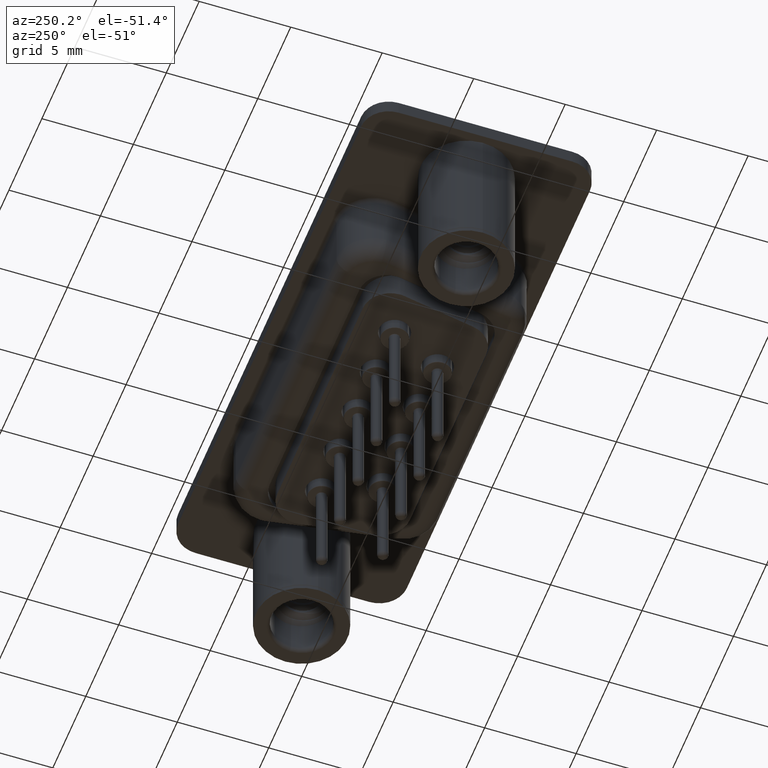
[diagram: clean part render]
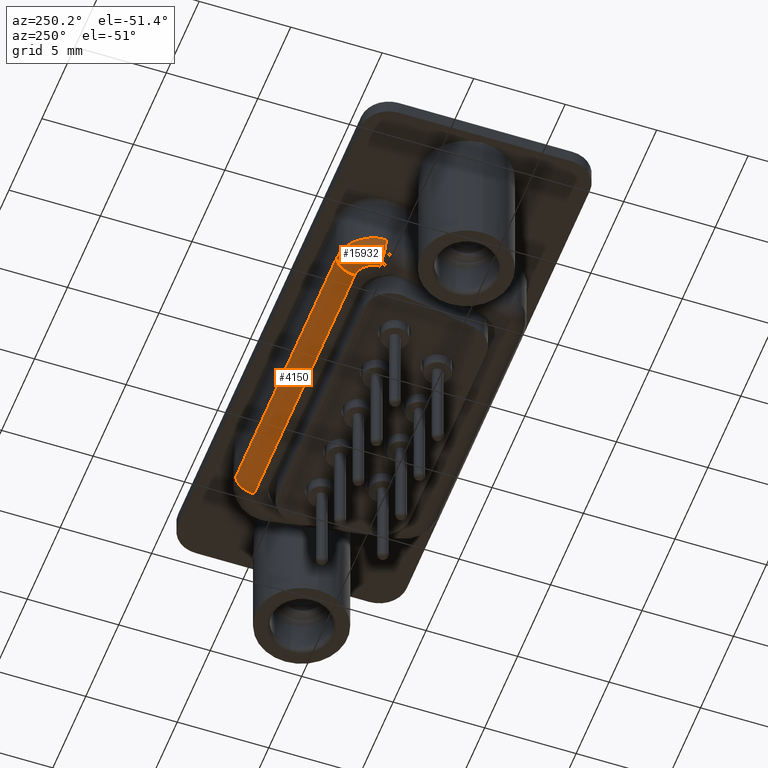
[diagram: same view with one multi-face feature highlighted, each face labeled with its STEP entity id]
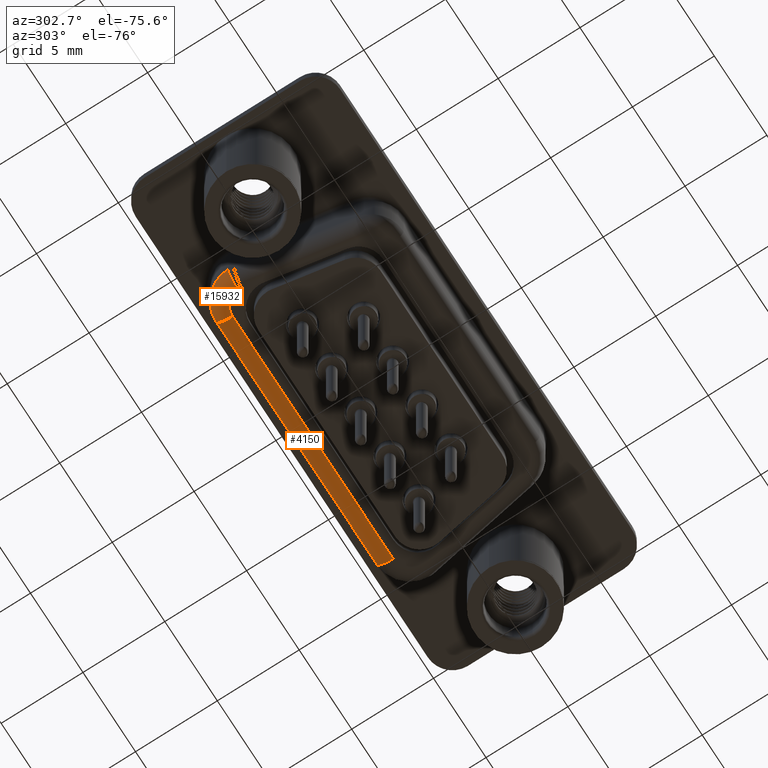
[diagram: same view with one multi-face feature highlighted, each face labeled with its STEP entity id]
A machine part, auxiliary view. The highlighted faces form ONE feature: a constant-radius fillet chain: 2 tangent blend faces with common blend radius 1 mm. The faces share edges in the B-rep.
A second angle (auxiliary view) of the same feature is appended — it is thin or edge-on in the first view.
Their STEP definitions:
[1] entity #15932 (Torus):
#144 = AXIS2_PLACEMENT_3D ( 'NONE', #14651, #2224, #12210 ) ;
#620 = CIRCLE ( 'NONE', #6352, 0.9999999999999991118 ) ;
#633 = VERTEX_POINT ( 'NONE', #2440 ) ;
#1289 = VERTEX_POINT ( 'NONE', #13294 ) ;
#1298 = DIRECTION ( 'NONE',  ( 1.224646799147353207E-16, 1.000000000000000000, 0.0000000000000000000 ) ) ;
#1362 = AXIS2_PLACEMENT_3D ( 'NONE', #11997, #9535, #14515 ) ;
#1390 = ORIENTED_EDGE ( 'NONE', *, *, #10282, .F. ) ;
#2224 = DIRECTION ( 'NONE',  ( 0.0000000000000000000, -0.0000000000000000000, 1.000000000000000000 ) ) ;
#2440 = CARTESIAN_POINT ( 'NONE',  ( 4.850000000000006750, 4.350000000000005862, -4.500000000000000000 ) ) ;
#2472 = VERTEX_POINT ( 'NONE', #15208 ) ;
#2547 = FACE_OUTER_BOUND ( 'NONE', #3634, .T. ) ;
#2599 = CARTESIAN_POINT ( 'NONE',  ( 3.850000000000007638, 3.350000000000005862, -3.499999999999999556 ) ) ;
#2987 = DIRECTION ( 'NONE',  ( 1.000000000000000000, 0.0000000000000000000, 0.0000000000000000000 ) ) ;
#3393 = CIRCLE ( 'NONE', #11776, 1.000000000000000000 ) ;
#3634 = EDGE_LOOP ( 'NONE', ( #1390, #3841, #10241, #14296 ) ) ;
#3841 = ORIENTED_EDGE ( 'NONE', *, *, #4684, .T. ) ;
#4684 = EDGE_CURVE ( 'NONE', #12114, #2472, #14856, .T. ) ;
#4933 = DIRECTION ( 'NONE',  ( 0.0000000000000000000, 0.0000000000000000000, 1.000000000000000000 ) ) ;
#5365 = TOROIDAL_SURFACE ( 'NONE', #144, 0.9999999999999995559, 1.000000000000000000 ) ;
#6352 = AXIS2_PLACEMENT_3D ( 'NONE', #6586, #6827, #2987 ) ;
#6586 = CARTESIAN_POINT ( 'NONE',  ( 4.850000000000006750, 3.350000000000005862, -4.500000000000000000 ) ) ;
#6827 = DIRECTION ( 'NONE',  ( -0.0000000000000000000, 0.0000000000000000000, -1.000000000000000000 ) ) ;
#7216 = DIRECTION ( 'NONE',  ( -1.000000000000000000, 0.0000000000000000000, 0.0000000000000000000 ) ) ;
#7735 = EDGE_CURVE ( 'NONE', #1289, #633, #3393, .T. ) ;
#9204 = EDGE_CURVE ( 'NONE', #1289, #2472, #10530, .T. ) ;
#9535 = DIRECTION ( 'NONE',  ( 0.0000000000000000000, -0.0000000000000000000, 1.000000000000000000 ) ) ;
#10241 = ORIENTED_EDGE ( 'NONE', *, *, #9204, .F. ) ;
#10282 = EDGE_CURVE ( 'NONE', #12114, #633, #620, .T. ) ;
#10530 = CIRCLE ( 'NONE', #1362, 2.000000000000000000 ) ;
#11490 = AXIS2_PLACEMENT_3D ( 'NONE', #2599, #1298, #14858 ) ;
#11776 = AXIS2_PLACEMENT_3D ( 'NONE', #14820, #7216, #4933 ) ;
#11997 = CARTESIAN_POINT ( 'NONE',  ( 4.850000000000006750, 3.350000000000005862, -3.499999999999999556 ) ) ;
#12114 = VERTEX_POINT ( 'NONE', #12809 ) ;
#12210 = DIRECTION ( 'NONE',  ( 1.000000000000000000, 0.0000000000000000000, 0.0000000000000000000 ) ) ;
#12809 = CARTESIAN_POINT ( 'NONE',  ( 3.850000000000007638, 3.350000000000005862, -4.500000000000000000 ) ) ;
#13294 = CARTESIAN_POINT ( 'NONE',  ( 4.850000000000006750, 5.350000000000005862, -3.499999999999999556 ) ) ;
#14296 = ORIENTED_EDGE ( 'NONE', *, *, #7735, .T. ) ;
#14515 = DIRECTION ( 'NONE',  ( 1.000000000000000000, 0.0000000000000000000, 0.0000000000000000000 ) ) ;
#14651 = CARTESIAN_POINT ( 'NONE',  ( 4.850000000000006750, 3.350000000000005862, -3.499999999999999556 ) ) ;
#14820 = CARTESIAN_POINT ( 'NONE',  ( 4.850000000000006750, 4.350000000000005862, -3.499999999999999556 ) ) ;
#14856 = CIRCLE ( 'NONE', #11490, 1.000000000000000000 ) ;
#14858 = DIRECTION ( 'NONE',  ( -1.000000000000000000, 0.0000000000000000000, 0.0000000000000000000 ) ) ;
#15208 = CARTESIAN_POINT ( 'NONE',  ( 2.850000000000007638, 3.350000000000005862, -3.499999999999999556 ) ) ;
#15932 = ADVANCED_FACE ( 'NONE', ( #2547 ), #5365, .T. ) ;
[2] entity #4150 (Cylinder):
#130 = DIRECTION ( 'NONE',  ( 0.0000000000000000000, 0.0000000000000000000, 1.000000000000000000 ) ) ;
#221 = VERTEX_POINT ( 'NONE', #10070 ) ;
#237 = EDGE_LOOP ( 'NONE', ( #6774, #13427, #1394, #7266 ) ) ;
#633 = VERTEX_POINT ( 'NONE', #2440 ) ;
#1289 = VERTEX_POINT ( 'NONE', #13294 ) ;
#1394 = ORIENTED_EDGE ( 'NONE', *, *, #7735, .F. ) ;
#1478 = VECTOR ( 'NONE', #11796, 1000.000000000000000 ) ;
#1710 = DIRECTION ( 'NONE',  ( 1.000000000000000000, 0.0000000000000000000, 0.0000000000000000000 ) ) ;
#2136 = FACE_OUTER_BOUND ( 'NONE', #237, .T. ) ;
#2425 = VECTOR ( 'NONE', #1710, 1000.000000000000000 ) ;
#2440 = CARTESIAN_POINT ( 'NONE',  ( 4.850000000000006750, 4.350000000000005862, -4.500000000000000000 ) ) ;
#3393 = CIRCLE ( 'NONE', #11776, 1.000000000000000000 ) ;
#4134 = CARTESIAN_POINT ( 'NONE',  ( 20.15000000000000924, 4.350000000000005862, -4.500000000000000000 ) ) ;
#4150 = ADVANCED_FACE ( 'NONE', ( #2136 ), #9659, .T. ) ;
#4933 = DIRECTION ( 'NONE',  ( 0.0000000000000000000, 0.0000000000000000000, 1.000000000000000000 ) ) ;
#4976 = VERTEX_POINT ( 'NONE', #4134 ) ;
#6044 = DIRECTION ( 'NONE',  ( 0.0000000000000000000, 0.0000000000000000000, -1.000000000000000000 ) ) ;
#6774 = ORIENTED_EDGE ( 'NONE', *, *, #7442, .T. ) ;
#6781 = LINE ( 'NONE', #15604, #1478 ) ;
#7050 = CIRCLE ( 'NONE', #11519, 1.000000000000000000 ) ;
#7216 = DIRECTION ( 'NONE',  ( -1.000000000000000000, 0.0000000000000000000, 0.0000000000000000000 ) ) ;
#7266 = ORIENTED_EDGE ( 'NONE', *, *, #14051, .F. ) ;
#7442 = EDGE_CURVE ( 'NONE', #221, #4976, #7050, .T. ) ;
#7735 = EDGE_CURVE ( 'NONE', #1289, #633, #3393, .T. ) ;
#8067 = CARTESIAN_POINT ( 'NONE',  ( 6.031390770746678953, 4.350000000000005862, -4.500000000000000000 ) ) ;
#8429 = CARTESIAN_POINT ( 'NONE',  ( 6.031390770746678953, 4.350000000000005862, -3.499999999999999556 ) ) ;
#8672 = AXIS2_PLACEMENT_3D ( 'NONE', #8429, #12283, #6044 ) ;
#8910 = LINE ( 'NONE', #8067, #2425 ) ;
#9659 = CYLINDRICAL_SURFACE ( 'NONE', #8672, 1.000000000000000000 ) ;
#9868 = EDGE_CURVE ( 'NONE', #633, #4976, #8910, .T. ) ;
#10070 = CARTESIAN_POINT ( 'NONE',  ( 20.15000000000000924, 5.350000000000005862, -3.499999999999999556 ) ) ;
#11519 = AXIS2_PLACEMENT_3D ( 'NONE', #11582, #15083, #130 ) ;
#11582 = CARTESIAN_POINT ( 'NONE',  ( 20.15000000000000924, 4.350000000000005862, -3.499999999999999556 ) ) ;
#11776 = AXIS2_PLACEMENT_3D ( 'NONE', #14820, #7216, #4933 ) ;
#11796 = DIRECTION ( 'NONE',  ( -1.000000000000000000, -0.0000000000000000000, -0.0000000000000000000 ) ) ;
#12283 = DIRECTION ( 'NONE',  ( 1.000000000000000000, 0.0000000000000000000, 0.0000000000000000000 ) ) ;
#13294 = CARTESIAN_POINT ( 'NONE',  ( 4.850000000000006750, 5.350000000000005862, -3.499999999999999556 ) ) ;
#13427 = ORIENTED_EDGE ( 'NONE', *, *, #9868, .F. ) ;
#14051 = EDGE_CURVE ( 'NONE', #221, #1289, #6781, .T. ) ;
#14820 = CARTESIAN_POINT ( 'NONE',  ( 4.850000000000006750, 4.350000000000005862, -3.499999999999999556 ) ) ;
#15083 = DIRECTION ( 'NONE',  ( -1.000000000000000000, 0.0000000000000000000, 0.0000000000000000000 ) ) ;
#15604 = CARTESIAN_POINT ( 'NONE',  ( 20.15000000000000924, 5.350000000000005862, -3.499999999999999556 ) ) ;